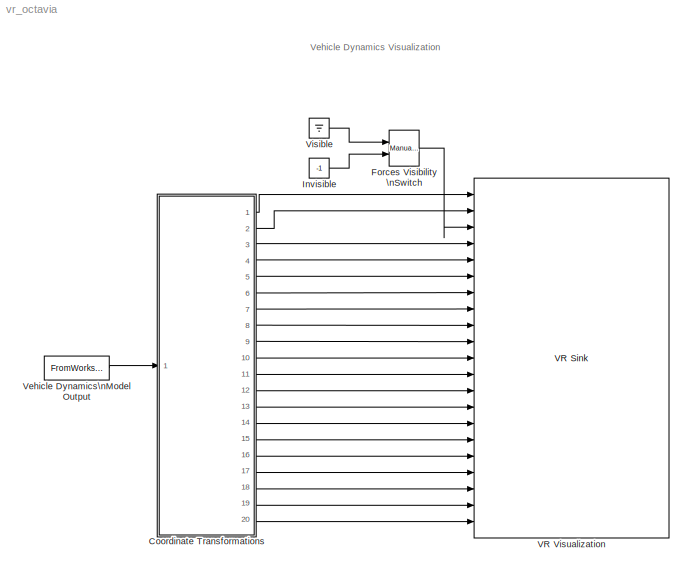
MODEL vr_octavia
KIND model
CONFIG PostLoadFcn = load octavia_testlap
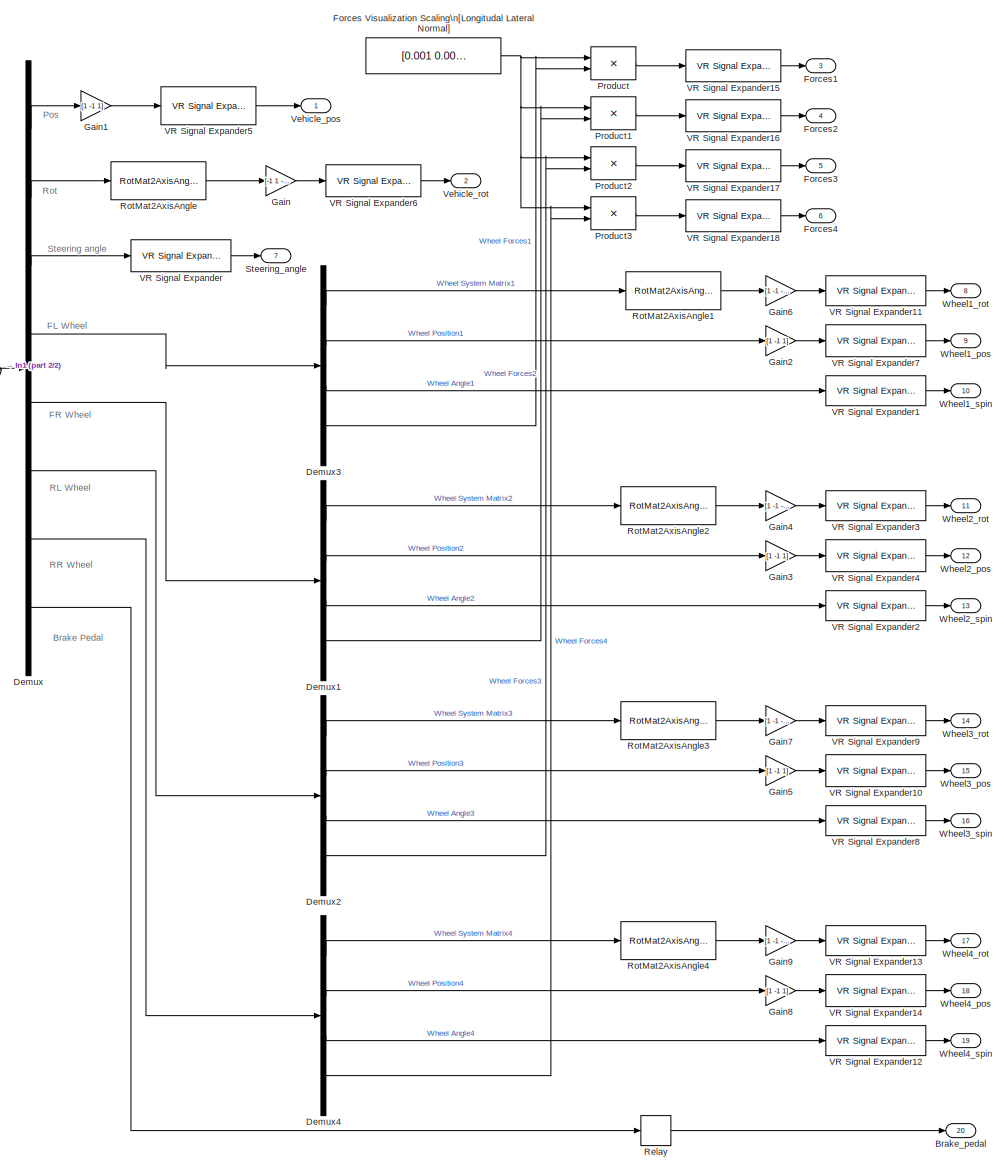
[diagram: Coordinate Transformations - part 1/2, most of the canvas]
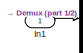
[diagram: Coordinate Transformations - part 2/2, middle left region]
BLOCK [SubSystem] Coordinate Transformations
  MinAlgLoopOccurrences = off
  Ports = [1, 20]
  PropExecContextAcrossSSBoundary = on
  RTWSystemCode = Auto
  TreatAsAtomicUnit = off
BLOCK [Outport] Coordinate Transformations/Brake_pedal
  BusOutputAsStruct = off
  IconDisplay = Port number
  Port = 20
BLOCK [Demux] Coordinate Transformations/Demux
  Outputs = [3,9,1,16,16,16,16,1]
  Ports = [1, 8]
BLOCK [Demux] Coordinate Transformations/Demux1
  Outputs = [9,3,1,3]
  Ports = [1, 4]
BLOCK [Demux] Coordinate Transformations/Demux2
  Outputs = [9,3,1,3]
  Ports = [1, 4]
BLOCK [Demux] Coordinate Transformations/Demux3
  Outputs = [9,3,1,3]
  Ports = [1, 4]
BLOCK [Demux] Coordinate Transformations/Demux4
  Outputs = [9,3,1,3]
  Ports = [1, 4]
BLOCK [Constant] Coordinate Transformations/Forces Visualization Scaling\n[Longitudal Lateral Normal]
  Value = [0.001 0.001 0.00025]
BLOCK [Outport] Coordinate Transformations/Forces1
  BusOutputAsStruct = off
  IconDisplay = Port number
  Port = 3
BLOCK [Outport] Coordinate Transformations/Forces2
  BusOutputAsStruct = off
  IconDisplay = Port number
  Port = 4
BLOCK [Outport] Coordinate Transformations/Forces3
  BusOutputAsStruct = off
  IconDisplay = Port number
  Port = 5
BLOCK [Outport] Coordinate Transformations/Forces4
  BusOutputAsStruct = off
  IconDisplay = Port number
  Port = 6
BLOCK [Gain] Coordinate Transformations/Gain
  Gain = [-1 1 -1 1]
BLOCK [Gain] Coordinate Transformations/Gain1
  Gain = [1 -1 1]
BLOCK [Gain] Coordinate Transformations/Gain2
  Gain = [1 -1 1]
BLOCK [Gain] Coordinate Transformations/Gain3
  Gain = [1 -1 1]
BLOCK [Gain] Coordinate Transformations/Gain4
  Gain = [1 -1 -1 1]
BLOCK [Gain] Coordinate Transformations/Gain5
  Gain = [1 -1 1]
BLOCK [Gain] Coordinate Transformations/Gain6
  Gain = [1 -1 -1 1]
BLOCK [Gain] Coordinate Transformations/Gain7
  Gain = [1 -1 -1 1]
BLOCK [Gain] Coordinate Transformations/Gain8
  Gain = [1 -1 1]
BLOCK [Gain] Coordinate Transformations/Gain9
  Gain = [1 -1 -1 1]
BLOCK [Inport] Coordinate Transformations/In1
  IconDisplay = Port number
  LatchInput = off
BLOCK [Product] Coordinate Transformations/Product
  InputSameDT = off
  Ports = [2, 1]
  RndMeth = Floor
BLOCK [Product] Coordinate Transformations/Product1
  InputSameDT = off
  Ports = [2, 1]
  RndMeth = Floor
BLOCK [Product] Coordinate Transformations/Product2
  InputSameDT = off
  Ports = [2, 1]
  RndMeth = Floor
BLOCK [Product] Coordinate Transformations/Product3
  InputSameDT = off
  Ports = [2, 1]
  RndMeth = Floor
BLOCK [Relay] Coordinate Transformations/Relay
BLOCK [Reference] Coordinate Transformations/RotMat2AxisAngle  REF=vr_octavia_lib/RotMat2AxisAngle  (lib defined in mdl_1631dc609498)
  Ports = [1, 1]
  ShowPortLabels = on
  SourceBlock = vr_octavia_lib/RotMat2AxisAngle
BLOCK [Reference] Coordinate Transformations/RotMat2AxisAngle1  REF=vr_octavia_lib/RotMat2AxisAngle  (lib defined in mdl_1631dc609498)
  Ports = [1, 1]
  ShowPortLabels = on
  SourceBlock = vr_octavia_lib/RotMat2AxisAngle
BLOCK [Reference] Coordinate Transformations/RotMat2AxisAngle2  REF=vr_octavia_lib/RotMat2AxisAngle  (lib defined in mdl_1631dc609498)
  Ports = [1, 1]
  ShowPortLabels = on
  SourceBlock = vr_octavia_lib/RotMat2AxisAngle
BLOCK [Reference] Coordinate Transformations/RotMat2AxisAngle3  REF=vr_octavia_lib/RotMat2AxisAngle  (lib defined in mdl_1631dc609498)
  Ports = [1, 1]
  ShowPortLabels = on
  SourceBlock = vr_octavia_lib/RotMat2AxisAngle
BLOCK [Reference] Coordinate Transformations/RotMat2AxisAngle4  REF=vr_octavia_lib/RotMat2AxisAngle  (lib defined in mdl_1631dc609498)
  Ports = [1, 1]
  ShowPortLabels = on
  SourceBlock = vr_octavia_lib/RotMat2AxisAngle
BLOCK [Outport] Coordinate Transformations/Steering_angle
  BusOutputAsStruct = off
  IconDisplay = Port number
  Port = 7
BLOCK [Reference] Coordinate Transformations/VR Signal Expander  REF=vrlib/VR Signal Expander
  Ports = [1, 1]
  ShowPortLabels = on
  SourceBlock = vrlib/VR Signal Expander
  SourceType = VR Signal Expander
  outidx = [4]
  outwidth = 4
BLOCK [Reference] Coordinate Transformations/VR Signal Expander1  REF=vrlib/VR Signal Expander
  Ports = [1, 1]
  ShowPortLabels = on
  SourceBlock = vrlib/VR Signal Expander
  SourceType = VR Signal Expander
  outidx = [4]
  outwidth = 4
BLOCK [Reference] Coordinate Transformations/VR Signal Expander10  REF=vrlib/VR Signal Expander
  Ports = [1, 1]
  ShowPortLabels = on
  SourceBlock = vrlib/VR Signal Expander
  SourceType = VR Signal Expander
  outidx = [1 3 2 ]
  outwidth = 3
BLOCK [Reference] Coordinate Transformations/VR Signal Expander11  REF=vrlib/VR Signal Expander
  Ports = [1, 1]
  ShowPortLabels = on
  SourceBlock = vrlib/VR Signal Expander
  SourceType = VR Signal Expander
  outidx = [1 3 2 4]
  outwidth = 4
BLOCK [Reference] Coordinate Transformations/VR Signal Expander12  REF=vrlib/VR Signal Expander
  Ports = [1, 1]
  ShowPortLabels = on
  SourceBlock = vrlib/VR Signal Expander
  SourceType = VR Signal Expander
  outidx = [4]
  outwidth = 4
BLOCK [Reference] Coordinate Transformations/VR Signal Expander13  REF=vrlib/VR Signal Expander
  Ports = [1, 1]
  ShowPortLabels = on
  SourceBlock = vrlib/VR Signal Expander
  SourceType = VR Signal Expander
  outidx = [1 3 2 4]
  outwidth = 4
BLOCK [Reference] Coordinate Transformations/VR Signal Expander14  REF=vrlib/VR Signal Expander
  Ports = [1, 1]
  ShowPortLabels = on
  SourceBlock = vrlib/VR Signal Expander
  SourceType = VR Signal Expander
  outidx = [1 3 2 ]
  outwidth = 3
BLOCK [Reference] Coordinate Transformations/VR Signal Expander15  REF=vrlib/VR Signal Expander
  Ports = [1, 1]
  ShowPortLabels = on
  SourceBlock = vrlib/VR Signal Expander
  SourceType = VR Signal Expander
  outidx = [1 3 2]
  outwidth = 3
BLOCK [Reference] Coordinate Transformations/VR Signal Expander16  REF=vrlib/VR Signal Expander
  Ports = [1, 1]
  ShowPortLabels = on
  SourceBlock = vrlib/VR Signal Expander
  SourceType = VR Signal Expander
  outidx = [1 3 2]
  outwidth = 3
BLOCK [Reference] Coordinate Transformations/VR Signal Expander17  REF=vrlib/VR Signal Expander
  Ports = [1, 1]
  ShowPortLabels = on
  SourceBlock = vrlib/VR Signal Expander
  SourceType = VR Signal Expander
  outidx = [1 3 2]
  outwidth = 3
BLOCK [Reference] Coordinate Transformations/VR Signal Expander18  REF=vrlib/VR Signal Expander
  Ports = [1, 1]
  ShowPortLabels = on
  SourceBlock = vrlib/VR Signal Expander
  SourceType = VR Signal Expander
  outidx = [1 3 2]
  outwidth = 3
BLOCK [Reference] Coordinate Transformations/VR Signal Expander2  REF=vrlib/VR Signal Expander
  Ports = [1, 1]
  ShowPortLabels = on
  SourceBlock = vrlib/VR Signal Expander
  SourceType = VR Signal Expander
  outidx = [4]
  outwidth = 4
BLOCK [Reference] Coordinate Transformations/VR Signal Expander3  REF=vrlib/VR Signal Expander
  Ports = [1, 1]
  ShowPortLabels = on
  SourceBlock = vrlib/VR Signal Expander
  SourceType = VR Signal Expander
  outidx = [1 3 2 4]
  outwidth = 4
BLOCK [Reference] Coordinate Transformations/VR Signal Expander4  REF=vrlib/VR Signal Expander
  Ports = [1, 1]
  ShowPortLabels = on
  SourceBlock = vrlib/VR Signal Expander
  SourceType = VR Signal Expander
  outidx = [1 3 2 ]
  outwidth = 3
BLOCK [Reference] Coordinate Transformations/VR Signal Expander5  REF=vrlib/VR Signal Expander
  Ports = [1, 1]
  ShowPortLabels = on
  SourceBlock = vrlib/VR Signal Expander
  SourceType = VR Signal Expander
  outidx = [1 3 2]
  outwidth = 3
BLOCK [Reference] Coordinate Transformations/VR Signal Expander6  REF=vrlib/VR Signal Expander
  Ports = [1, 1]
  ShowPortLabels = on
  SourceBlock = vrlib/VR Signal Expander
  SourceType = VR Signal Expander
  outidx = [1 3 2 4]
  outwidth = 4
BLOCK [Reference] Coordinate Transformations/VR Signal Expander7  REF=vrlib/VR Signal Expander
  Ports = [1, 1]
  ShowPortLabels = on
  SourceBlock = vrlib/VR Signal Expander
  SourceType = VR Signal Expander
  outidx = [1 3 2 ]
  outwidth = 3
BLOCK [Reference] Coordinate Transformations/VR Signal Expander8  REF=vrlib/VR Signal Expander
  Ports = [1, 1]
  ShowPortLabels = on
  SourceBlock = vrlib/VR Signal Expander
  SourceType = VR Signal Expander
  outidx = [4]
  outwidth = 4
BLOCK [Reference] Coordinate Transformations/VR Signal Expander9  REF=vrlib/VR Signal Expander
  Ports = [1, 1]
  ShowPortLabels = on
  SourceBlock = vrlib/VR Signal Expander
  SourceType = VR Signal Expander
  outidx = [1 3 2 4]
  outwidth = 4
BLOCK [Outport] Coordinate Transformations/Vehicle_pos
  BusOutputAsStruct = off
  IconDisplay = Port number
BLOCK [Outport] Coordinate Transformations/Vehicle_rot
  BusOutputAsStruct = off
  IconDisplay = Port number
  Port = 2
BLOCK [Outport] Coordinate Transformations/Wheel1_pos
  BusOutputAsStruct = off
  IconDisplay = Port number
  Port = 9
BLOCK [Outport] Coordinate Transformations/Wheel1_rot
  BusOutputAsStruct = off
  IconDisplay = Port number
  Port = 8
BLOCK [Outport] Coordinate Transformations/Wheel1_spin
  BusOutputAsStruct = off
  IconDisplay = Port number
  Port = 10
BLOCK [Outport] Coordinate Transformations/Wheel2_pos
  BusOutputAsStruct = off
  IconDisplay = Port number
  Port = 12
BLOCK [Outport] Coordinate Transformations/Wheel2_rot
  BusOutputAsStruct = off
  IconDisplay = Port number
  Port = 11
BLOCK [Outport] Coordinate Transformations/Wheel2_spin
  BusOutputAsStruct = off
  IconDisplay = Port number
  Port = 13
BLOCK [Outport] Coordinate Transformations/Wheel3_pos
  BusOutputAsStruct = off
  IconDisplay = Port number
  Port = 15
BLOCK [Outport] Coordinate Transformations/Wheel3_rot
  BusOutputAsStruct = off
  IconDisplay = Port number
  Port = 14
BLOCK [Outport] Coordinate Transformations/Wheel3_spin
  BusOutputAsStruct = off
  IconDisplay = Port number
  Port = 16
BLOCK [Outport] Coordinate Transformations/Wheel4_pos
  BusOutputAsStruct = off
  IconDisplay = Port number
  Port = 18
BLOCK [Outport] Coordinate Transformations/Wheel4_rot
  BusOutputAsStruct = off
  IconDisplay = Port number
  Port = 17
BLOCK [Outport] Coordinate Transformations/Wheel4_spin
  BusOutputAsStruct = off
  IconDisplay = Port number
  Port = 19
BLOCK [Reference] Forces Visibility \nSwitch  REF=simulink/Signal\nRouting/Manual Switch
  Ports = [2, 1]
  ShowPortLabels = on
  SourceBlock = simulink/Signal\nRouting/Manual Switch
  SourceType = Manual Switch
  action = 0
  sw = 1
BLOCK [Constant] Invisible
  Value = -1
BLOCK [Reference] VR Visualization  REF=vrlib/VR Sink
  AutoView = on
  FieldsWritten = Vehicle_pos_Car1.translation.3.1.double#Vehicle_rot_Car1.rotation.4.1.double#Forces_visible_Car1.whichChoice.1.1.double#Force1_Car1.scale.3.1.double#Force2_Car1.scale.3.1.double#Force3_Car1.scale.3.1.double#Force4_Car1.scale.3.1.double#SteeringWheelAngle1_Car1.rotation.4.1.double#WheelFL_Car1.rotation.4.1.double#WheelFL_Car1.translation.3.1.double#WheelSpinFL_Car1.rotation.4.1.double#WheelFR_Car1....<+345ch>
  FigureProperties = {'Position', 'Name', 'Viewpoint', 'CameraBound', 'CameraDirection', 'CameraPosition', 'CameraUpVector', 'ZoomFactor', 'Antialiasing', 'Headlight', 'Lighting', 'NavPanel', 'StatusBar', 'ToolBar', 'Textures', 'Transparency', 'Wireframe', 'NavZones', 'NavMode', 'NavSpeed', 'Record2DCompressMethod', 'Record2DCompressQuality', 'Record2D', 'Record2DFileName'; [9.0000000000000000e+000  7.2000000000000000...<+555ch>
  Ports = [21]
  RemoteChange = off
  RemoteView = on
  SampleTime = 0.04
  SourceBlock = vrlib/VR Sink
  SourceType = Virtual Reality Sink
  ViewEnable = on
  WorldFileName = octavia_scene.wrl
BLOCK [FromWorkspace] Vehicle Dynamics\nModel Output
  OutputAfterFinalValue = Holding final value
  SampleTime = 0.04
  VariableName = test_lap
BLOCK [Ground] Visible
ANNOTATION (root): Vehicle Dynamics Visualization
ANNOTATION Coordinate Transformations: Brake Pedal
ANNOTATION Coordinate Transformations: FL Wheel
ANNOTATION Coordinate Transformations: FR Wheel
ANNOTATION Coordinate Transformations: Pos
ANNOTATION Coordinate Transformations: RL Wheel
ANNOTATION Coordinate Transformations: RR Wheel
ANNOTATION Coordinate Transformations: Rot
ANNOTATION Coordinate Transformations: Steering angle
LINE Coordinate Transformations/Demux1:1 -> Coordinate Transformations/RotMat2AxisAngle2:1
LINE Coordinate Transformations/Demux1:2 -> Coordinate Transformations/Gain3:1
LINE Coordinate Transformations/Demux1:3 -> Coordinate Transformations/VR Signal Expander2:1
LINE Coordinate Transformations/Demux1:4 -> Coordinate Transformations/Product1:2
LINE Coordinate Transformations/Demux2:1 -> Coordinate Transformations/RotMat2AxisAngle3:1
LINE Coordinate Transformations/Demux2:2 -> Coordinate Transformations/Gain5:1
LINE Coordinate Transformations/Demux2:3 -> Coordinate Transformations/VR Signal Expander8:1
LINE Coordinate Transformations/Demux2:4 -> Coordinate Transformations/Product2:2
LINE Coordinate Transformations/Demux3:1 -> Coordinate Transformations/RotMat2AxisAngle1:1
LINE Coordinate Transformations/Demux3:2 -> Coordinate Transformations/Gain2:1
LINE Coordinate Transformations/Demux3:3 -> Coordinate Transformations/VR Signal Expander1:1
LINE Coordinate Transformations/Demux3:4 -> Coordinate Transformations/Product:2
LINE Coordinate Transformations/Demux4:1 -> Coordinate Transformations/RotMat2AxisAngle4:1
LINE Coordinate Transformations/Demux4:2 -> Coordinate Transformations/Gain8:1
LINE Coordinate Transformations/Demux4:3 -> Coordinate Transformations/VR Signal Expander12:1
LINE Coordinate Transformations/Demux4:4 -> Coordinate Transformations/Product3:2
LINE Coordinate Transformations/Demux:1 -> Coordinate Transformations/Gain1:1
LINE Coordinate Transformations/Demux:2 -> Coordinate Transformations/RotMat2AxisAngle:1
LINE Coordinate Transformations/Demux:3 -> Coordinate Transformations/VR Signal Expander:1
LINE Coordinate Transformations/Demux:4 -> Coordinate Transformations/Demux3:1
LINE Coordinate Transformations/Demux:5 -> Coordinate Transformations/Demux1:1
LINE Coordinate Transformations/Demux:6 -> Coordinate Transformations/Demux2:1
LINE Coordinate Transformations/Demux:7 -> Coordinate Transformations/Demux4:1
LINE Coordinate Transformations/Demux:8 -> Coordinate Transformations/Relay:1
NET Coordinate Transformations/Forces Visualization Scaling\n[Longitudal Lateral Normal]:1 -> Coordinate Transformations/Product1:1, Coordinate Transformations/Product2:1, Coordinate Transformations/Product3:1, Coordinate Transformations/Product:1
LINE Coordinate Transformations/Gain1:1 -> Coordinate Transformations/VR Signal Expander5:1
LINE Coordinate Transformations/Gain2:1 -> Coordinate Transformations/VR Signal Expander7:1
LINE Coordinate Transformations/Gain3:1 -> Coordinate Transformations/VR Signal Expander4:1
LINE Coordinate Transformations/Gain4:1 -> Coordinate Transformations/VR Signal Expander3:1
LINE Coordinate Transformations/Gain5:1 -> Coordinate Transformations/VR Signal Expander10:1
LINE Coordinate Transformations/Gain6:1 -> Coordinate Transformations/VR Signal Expander11:1
LINE Coordinate Transformations/Gain7:1 -> Coordinate Transformations/VR Signal Expander9:1
LINE Coordinate Transformations/Gain8:1 -> Coordinate Transformations/VR Signal Expander14:1
LINE Coordinate Transformations/Gain9:1 -> Coordinate Transformations/VR Signal Expander13:1
LINE Coordinate Transformations/Gain:1 -> Coordinate Transformations/VR Signal Expander6:1
LINE Coordinate Transformations/In1:1 -> Coordinate Transformations/Demux:1
LINE Coordinate Transformations/Product1:1 -> Coordinate Transformations/VR Signal Expander16:1
LINE Coordinate Transformations/Product2:1 -> Coordinate Transformations/VR Signal Expander17:1
LINE Coordinate Transformations/Product3:1 -> Coordinate Transformations/VR Signal Expander18:1
LINE Coordinate Transformations/Product:1 -> Coordinate Transformations/VR Signal Expander15:1
LINE Coordinate Transformations/Relay:1 -> Coordinate Transformations/Brake_pedal:1
LINE Coordinate Transformations/RotMat2AxisAngle1:1 -> Coordinate Transformations/Gain6:1
LINE Coordinate Transformations/RotMat2AxisAngle2:1 -> Coordinate Transformations/Gain4:1
LINE Coordinate Transformations/RotMat2AxisAngle3:1 -> Coordinate Transformations/Gain7:1
LINE Coordinate Transformations/RotMat2AxisAngle4:1 -> Coordinate Transformations/Gain9:1
LINE Coordinate Transformations/RotMat2AxisAngle:1 -> Coordinate Transformations/Gain:1
LINE Coordinate Transformations/VR Signal Expander10:1 -> Coordinate Transformations/Wheel3_pos:1
LINE Coordinate Transformations/VR Signal Expander11:1 -> Coordinate Transformations/Wheel1_rot:1
LINE Coordinate Transformations/VR Signal Expander12:1 -> Coordinate Transformations/Wheel4_spin:1
LINE Coordinate Transformations/VR Signal Expander13:1 -> Coordinate Transformations/Wheel4_rot:1
LINE Coordinate Transformations/VR Signal Expander14:1 -> Coordinate Transformations/Wheel4_pos:1
LINE Coordinate Transformations/VR Signal Expander15:1 -> Coordinate Transformations/Forces1:1
LINE Coordinate Transformations/VR Signal Expander16:1 -> Coordinate Transformations/Forces2:1
LINE Coordinate Transformations/VR Signal Expander17:1 -> Coordinate Transformations/Forces3:1
LINE Coordinate Transformations/VR Signal Expander18:1 -> Coordinate Transformations/Forces4:1
LINE Coordinate Transformations/VR Signal Expander1:1 -> Coordinate Transformations/Wheel1_spin:1
LINE Coordinate Transformations/VR Signal Expander2:1 -> Coordinate Transformations/Wheel2_spin:1
LINE Coordinate Transformations/VR Signal Expander3:1 -> Coordinate Transformations/Wheel2_rot:1
LINE Coordinate Transformations/VR Signal Expander4:1 -> Coordinate Transformations/Wheel2_pos:1
LINE Coordinate Transformations/VR Signal Expander5:1 -> Coordinate Transformations/Vehicle_pos:1
LINE Coordinate Transformations/VR Signal Expander6:1 -> Coordinate Transformations/Vehicle_rot:1
LINE Coordinate Transformations/VR Signal Expander7:1 -> Coordinate Transformations/Wheel1_pos:1
LINE Coordinate Transformations/VR Signal Expander8:1 -> Coordinate Transformations/Wheel3_spin:1
LINE Coordinate Transformations/VR Signal Expander9:1 -> Coordinate Transformations/Wheel3_rot:1
LINE Coordinate Transformations/VR Signal Expander:1 -> Coordinate Transformations/Steering_angle:1
LINE Coordinate Transformations:1 -> VR Visualization:1
LINE Coordinate Transformations:10 -> VR Visualization:11
LINE Coordinate Transformations:11 -> VR Visualization:12
LINE Coordinate Transformations:12 -> VR Visualization:13
LINE Coordinate Transformations:13 -> VR Visualization:14
LINE Coordinate Transformations:14 -> VR Visualization:15
LINE Coordinate Transformations:15 -> VR Visualization:16
LINE Coordinate Transformations:16 -> VR Visualization:17
LINE Coordinate Transformations:17 -> VR Visualization:18
LINE Coordinate Transformations:18 -> VR Visualization:19
LINE Coordinate Transformations:19 -> VR Visualization:20
LINE Coordinate Transformations:2 -> VR Visualization:2
LINE Coordinate Transformations:20 -> VR Visualization:21
LINE Coordinate Transformations:3 -> VR Visualization:4
LINE Coordinate Transformations:4 -> VR Visualization:5
LINE Coordinate Transformations:5 -> VR Visualization:6
LINE Coordinate Transformations:6 -> VR Visualization:7
LINE Coordinate Transformations:7 -> VR Visualization:8
LINE Coordinate Transformations:8 -> VR Visualization:9
LINE Coordinate Transformations:9 -> VR Visualization:10
LINE Forces Visibility \nSwitch:1 -> VR Visualization:3
LINE Invisible:1 -> Forces Visibility \nSwitch:2
LINE Vehicle Dynamics\nModel Output:1 -> Coordinate Transformations:1
LINE Visible:1 -> Forces Visibility \nSwitch:1
note: NET lines group one-source signal fan-out (src -> all destinations, sorted); 1:1 wires keep LINE
